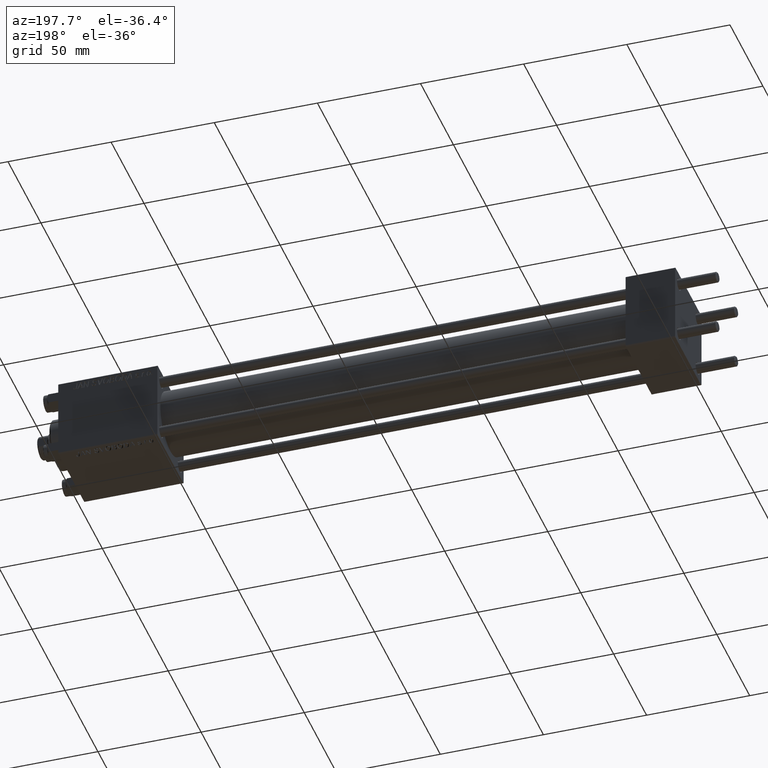
[diagram: clean part render]
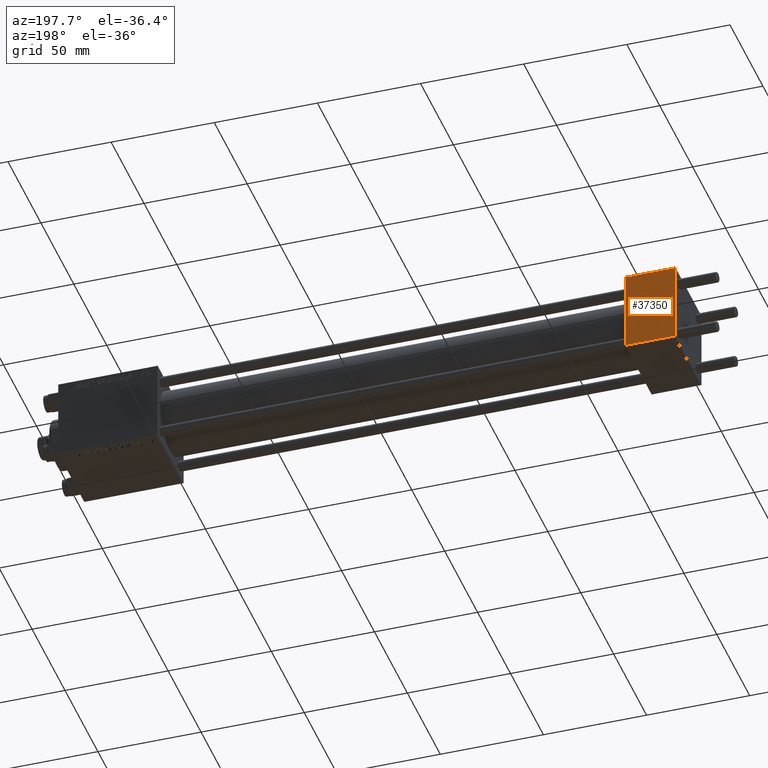
[diagram: same view with one face highlighted and labeled with its STEP entity id]
A machine part, auxiliary view. The second image highlights one B-rep face of the part: STEP entity #37350.
In plain terms, the highlighted planar face has unit normal (0, 1, 0).
Its self-contained STEP definition (entity closure, byte-faithful):
#2229 = EDGE_CURVE ( 'NONE', #45165, #10946, #28595, .T. ) ;
#3010 = EDGE_CURVE ( 'NONE', #3440, #44712, #3029, .T. ) ;
#3029 = LINE ( 'NONE', #14136, #41182 ) ;
#3440 = VERTEX_POINT ( 'NONE', #38948 ) ;
#10946 = VERTEX_POINT ( 'NONE', #32888 ) ;
#11928 = EDGE_CURVE ( 'NONE', #10946, #3440, #14760, .T. ) ;
#12389 = DIRECTION ( 'NONE',  ( 0.000000000000000000, 0.000000000000000000, -1.000000000000000000 ) ) ;
#13751 = CARTESIAN_POINT ( 'NONE',  ( 24.00000000000000000, 20.00000000000000000, 19.49999999999999289 ) ) ;
#14136 = CARTESIAN_POINT ( 'NONE',  ( 24.00000000000000000, 20.00000000000000000, -19.50000000000002132 ) ) ;
#14525 = LINE ( 'NONE', #49259, #15811 ) ;
#14760 = LINE ( 'NONE', #26331, #44566 ) ;
#14772 = DIRECTION ( 'NONE',  ( 0.000000000000000000, 0.000000000000000000, -1.000000000000000000 ) ) ;
#15071 = DIRECTION ( 'NONE',  ( 0.000000000000000000, -0.000000000000000000, 1.000000000000000000 ) ) ;
#15391 = EDGE_LOOP ( 'NONE', ( #47831, #23324, #31282, #42046 ) ) ;
#15433 = VECTOR ( 'NONE', #40448, 1000.000000000000000 ) ;
#15811 = VECTOR ( 'NONE', #14772, 1000.000000000000000 ) ;
#16043 = AXIS2_PLACEMENT_3D ( 'NONE', #30663, #42245, #15071 ) ;
#18627 = EDGE_CURVE ( 'NONE', #45165, #44712, #14525, .T. ) ;
#22872 = FACE_OUTER_BOUND ( 'NONE', #15391, .T. ) ;
#23324 = ORIENTED_EDGE ( 'NONE', *, *, #3010, .T. ) ;
#24359 = CARTESIAN_POINT ( 'NONE',  ( 0.000000000000000000, 20.00000000000000000, -19.50000000000002132 ) ) ;
#26331 = CARTESIAN_POINT ( 'NONE',  ( 24.00000000000000000, 20.00000000000000000, 20.00000000000000000 ) ) ;
#28595 = LINE ( 'NONE', #13751, #15433 ) ;
#30663 = CARTESIAN_POINT ( 'NONE',  ( 24.00000000000000000, 20.00000000000000000, 20.00000000000000000 ) ) ;
#31282 = ORIENTED_EDGE ( 'NONE', *, *, #18627, .F. ) ;
#31353 = CARTESIAN_POINT ( 'NONE',  ( 0.000000000000000000, 20.00000000000000000, 19.49999999999999289 ) ) ;
#32888 = CARTESIAN_POINT ( 'NONE',  ( 24.00000000000000000, 20.00000000000000000, 19.49999999999999289 ) ) ;
#37350 = ADVANCED_FACE ( 'NONE', ( #22872 ), #49801, .T. ) ;
#37779 = DIRECTION ( 'NONE',  ( -1.000000000000000000, 0.000000000000000000, 0.000000000000000000 ) ) ;
#38948 = CARTESIAN_POINT ( 'NONE',  ( 24.00000000000000000, 20.00000000000000000, -19.50000000000002132 ) ) ;
#40448 = DIRECTION ( 'NONE',  ( 1.000000000000000000, 0.000000000000000000, 0.000000000000000000 ) ) ;
#41182 = VECTOR ( 'NONE', #37779, 1000.000000000000000 ) ;
#42046 = ORIENTED_EDGE ( 'NONE', *, *, #2229, .T. ) ;
#42245 = DIRECTION ( 'NONE',  ( -0.000000000000000000, 1.000000000000000000, 0.000000000000000000 ) ) ;
#44566 = VECTOR ( 'NONE', #12389, 1000.000000000000000 ) ;
#44712 = VERTEX_POINT ( 'NONE', #24359 ) ;
#45165 = VERTEX_POINT ( 'NONE', #31353 ) ;
#47831 = ORIENTED_EDGE ( 'NONE', *, *, #11928, .T. ) ;
#49259 = CARTESIAN_POINT ( 'NONE',  ( 0.000000000000000000, 20.00000000000000000, 20.00000000000000000 ) ) ;
#49801 = PLANE ( 'NONE',  #16043 ) ;